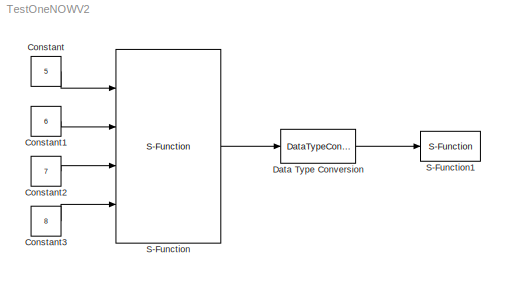
MODEL TestOneNOWV2
KIND model
BLOCK [Constant] Constant
  OutDataType = fixdt(1, 16)
  OutDataTypeMode = double
  OutDataTypeStr = double
  OutScaling = 2^0
  Value = 5
BLOCK [Constant] Constant1
  OutDataType = fixdt(1, 16)
  OutDataTypeMode = int32
  OutDataTypeStr = int32
  OutScaling = 2^0
  Value = 6
BLOCK [Constant] Constant2
  OutDataType = fixdt(1, 16)
  OutDataTypeMode = int32
  OutDataTypeStr = int32
  OutScaling = 2^0
  Value = 7
BLOCK [Constant] Constant3
  OutDataType = fixdt(1, 16)
  OutDataTypeMode = int32
  OutDataTypeStr = int32
  OutScaling = 2^0
  Value = 8
BLOCK [DataTypeConversion] Data Type Conversion
  OutDataType = fixdt(1, 16)
  OutDataTypeMode = uint32
  OutDataTypeStr = uint32
  OutScaling = 2^0
  RndMeth = Floor
  SaturateOnIntegerOverflow = off
BLOCK [S-Function] S-Function
  EnableBusSupport = off
  FunctionName = serialComV3
  Ports = [4, 1]
BLOCK [S-Function] S-Function1
  EnableBusSupport = off
  FunctionName = printOut
  Ports = [1]
LINE Constant1:1 -> S-Function:2
LINE Constant2:1 -> S-Function:3
LINE Constant3:1 -> S-Function:4
LINE Constant:1 -> S-Function:1
LINE Data Type Conversion:1 -> S-Function1:1
LINE S-Function:1 -> Data Type Conversion:1
